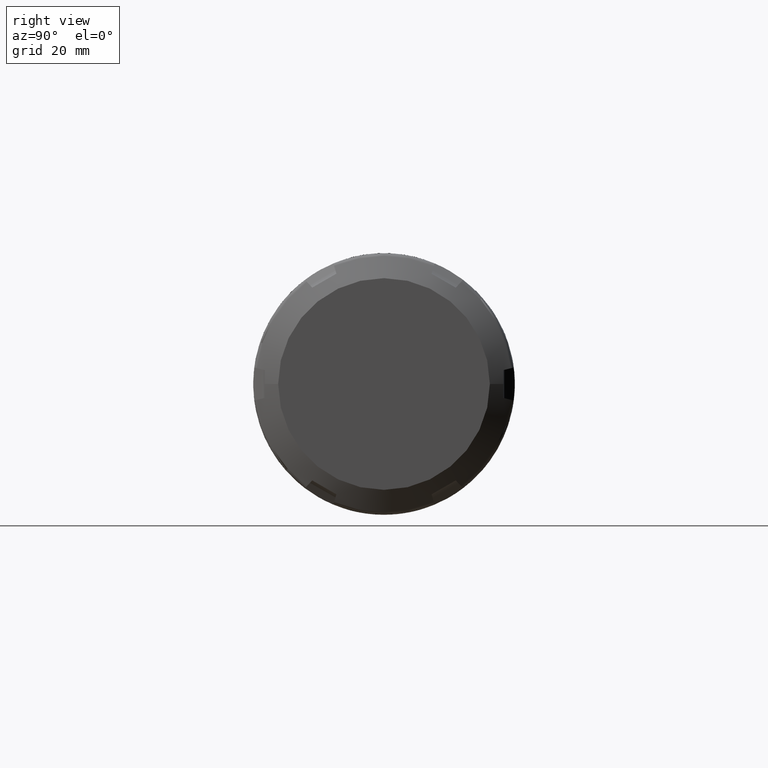
[diagram: clean part render]
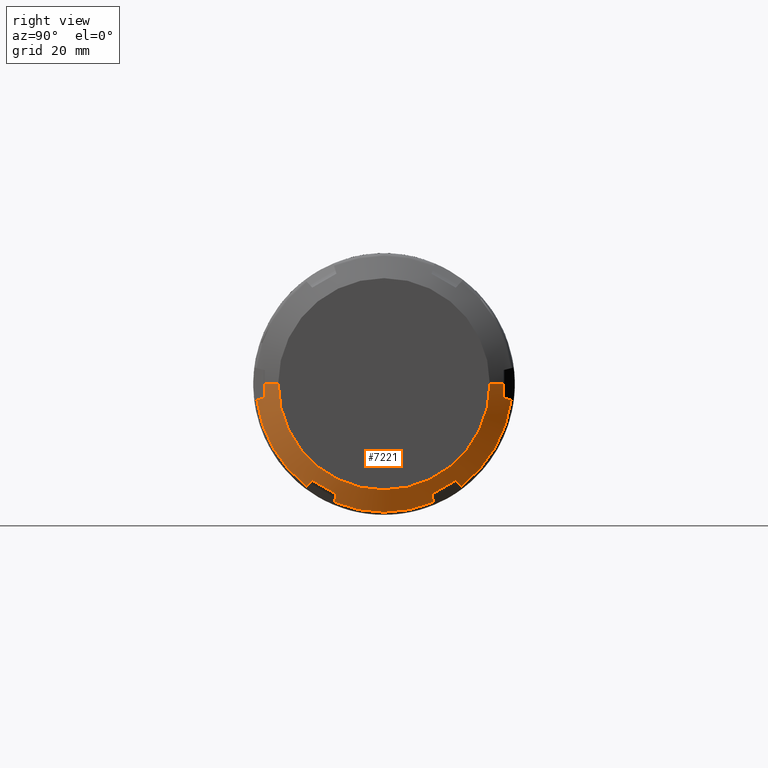
[diagram: same view with one face highlighted and labeled with its STEP entity id]
A machine part, right view. The second image highlights one B-rep face of the part: STEP entity #7221.
In plain terms, the highlighted conical surface has half-angle 60 deg.
Its self-contained STEP definition (entity closure, byte-faithful):
#6351=CARTESIAN_POINT('',(2.351130782476E1,1.727618510266E1,-2.322323035877E1));
#6352=CARTESIAN_POINT('',(2.332842823305E1,1.749804769833E1,-2.345297580209E1));
#6353=CARTESIAN_POINT('',(2.295978520802E1,1.794515018410E1,-2.391596397947E1));
#6354=CARTESIAN_POINT('',(2.258538211756E1,1.839901028735E1,-2.438594987460E1));
#6355=CARTESIAN_POINT('',(2.239674230313E1,1.862763043938E1,-2.462269297237E1));
#6357=CARTESIAN_POINT('',(2.351130782476E1,1.147381489730E1,-2.657323035877E1));
#6358=CARTESIAN_POINT('',(2.356105051412E1,1.211849164162E1,-2.620102606690E1));
#6359=CARTESIAN_POINT('',(2.362777625606E1,1.340784245763E1,-2.545661902620E1));
#6360=CARTESIAN_POINT('',(2.362777583851E1,1.534217003691E1,-2.433983447760E1));
#6361=CARTESIAN_POINT('',(2.356105010187E1,1.663151370114E1,-2.359543156598E1));
#6362=CARTESIAN_POINT('',(2.351130782476E1,1.727618510266E1,-2.322323035877E1));
#6364=CARTESIAN_POINT('',(2.239674230313E1,1.201006240397E1,-2.844334765900E1));
#6365=CARTESIAN_POINT('',(2.258533438069E1,1.191936989944E1,-2.812706530876E1));
#6366=CARTESIAN_POINT('',(2.295968976826E1,1.173930318813E1,-2.749909805885E1));
#6367=CARTESIAN_POINT('',(2.332838053240E1,1.156187195180E1,-2.688032180249E1));
#6368=CARTESIAN_POINT('',(2.351130782476E1,1.147381489730E1,-2.657323035877E1));
#6370=CARTESIAN_POINT('',(2.239674230313E1,0.E0,0.E0));
#6371=DIRECTION('',(-1.E0,0.E0,0.E0));
#6372=DIRECTION('',(0.E0,3.889898754327E-1,-9.212420294422E-1));
#6373=AXIS2_PLACEMENT_3D('',#6370,#6371,#6372);
#6375=CARTESIAN_POINT('',(2.351130782476E1,-1.147381489730E1,
-2.657323035877E1));
#6376=CARTESIAN_POINT('',(2.332842823305E1,-1.156184898978E1,
-2.688024172443E1));
#6377=CARTESIAN_POINT('',(2.295978520802E1,-1.173925727016E1,
-2.749893792389E1));
#6378=CARTESIAN_POINT('',(2.258538211756E1,-1.191934694315E1,
-2.812698525064E1));
#6379=CARTESIAN_POINT('',(2.239674230313E1,-1.201006240397E1,
-2.844334765900E1));
#6381=CARTESIAN_POINT('',(2.351130782476E1,-1.727618510266E1,
-2.322323035877E1));
#6382=CARTESIAN_POINT('',(2.356105051412E1,-1.663150835835E1,
-2.359543465064E1));
#6383=CARTESIAN_POINT('',(2.362777625606E1,-1.534215754233E1,
-2.433984169135E1));
#6384=CARTESIAN_POINT('',(2.362777583851E1,-1.340782996305E1,
-2.545662623995E1));
#6385=CARTESIAN_POINT('',(2.356105010187E1,-1.211848629883E1,
-2.620102915156E1));
#6386=CARTESIAN_POINT('',(2.351130782476E1,-1.147381489730E1,
-2.657323035877E1));
#6388=CARTESIAN_POINT('',(2.239674230313E1,-1.862763043938E1,
-2.462269297237E1));
#6389=CARTESIAN_POINT('',(2.258533438069E1,-1.839906814157E1,
-2.438600978440E1));
#6390=CARTESIAN_POINT('',(2.295968976826E1,-1.794526590606E1,
-2.391608381307E1));
#6391=CARTESIAN_POINT('',(2.332838053240E1,-1.749810556696E1,
-2.345303572681E1));
#6392=CARTESIAN_POINT('',(2.351130782476E1,-1.727618510266E1,
-2.322323035877E1));
#6394=CARTESIAN_POINT('',(2.239674230313E1,0.E0,0.E0));
#6395=DIRECTION('',(-1.E0,0.E0,0.E0));
#6396=DIRECTION('',(0.E0,-6.033240628145E-1,-7.974961286608E-1));
#6397=AXIS2_PLACEMENT_3D('',#6394,#6395,#6396);
#6399=CARTESIAN_POINT('',(2.351130782476E1,-2.874999999997E1,-3.35E0));
#6400=CARTESIAN_POINT('',(2.332842823305E1,-2.905989668812E1,
-3.427265922344E0));
#6401=CARTESIAN_POINT('',(2.295978520802E1,-2.968440745426E1,
-3.582973944421E0));
#6402=CARTESIAN_POINT('',(2.258538211756E1,-3.031835723049E1,
-3.741035376033E0));
#6403=CARTESIAN_POINT('',(2.239674230313E1,-3.063769284335E1,
-3.820654686622E0));
#6405=CARTESIAN_POINT('',(2.362361162515E1,-2.874999999997E1,0.E0));
#6406=CARTESIAN_POINT('',(2.362361162515E1,-2.874999999997E1,
-3.723033754199E-1));
#6407=CARTESIAN_POINT('',(2.361525781864E1,-2.874999999997E1,
-1.116855572672E0));
#6408=CARTESIAN_POINT('',(2.357773435590E1,-2.874999999997E1,
-2.233506677949E0));
#6409=CARTESIAN_POINT('',(2.353617556265E1,-2.874999999997E1,
-2.977849684408E0));
#6410=CARTESIAN_POINT('',(2.351130782476E1,-2.874999999997E1,-3.35E0));
#6412=DIRECTION('',(-5.E-1,-8.660254037844E-1,0.E0));
#6413=VECTOR('',#6412,3.752776749692E0);
#6414=CARTESIAN_POINT('',(2.55E1,-2.55E1,0.E0));
#6415=LINE('',#6414,#6413);
#6416=CARTESIAN_POINT('',(2.55E1,0.E0,0.E0));
#6417=DIRECTION('',(-1.E0,0.E0,0.E0));
#6418=DIRECTION('',(0.E0,1.E0,0.E0));
#6419=AXIS2_PLACEMENT_3D('',#6416,#6417,#6418);
#6421=DIRECTION('',(-5.E-1,8.660254037844E-1,0.E0));
#6422=VECTOR('',#6421,3.752776749692E0);
#6423=CARTESIAN_POINT('',(2.55E1,2.55E1,0.E0));
#6424=LINE('',#6423,#6422);
#6425=CARTESIAN_POINT('',(2.351130782476E1,2.874999999997E1,-3.35E0));
#6426=CARTESIAN_POINT('',(2.353617695757E1,2.874999999997E1,-2.977828809184E0));
#6427=CARTESIAN_POINT('',(2.357773662637E1,2.874999999997E1,-2.233458033279E0));
#6428=CARTESIAN_POINT('',(2.361525848375E1,2.874999999997E1,-1.116817767542E0));
#6429=CARTESIAN_POINT('',(2.362361162515E1,2.874999999997E1,
-3.722872262064E-1));
#6430=CARTESIAN_POINT('',(2.362361162515E1,2.874999999997E1,0.E0));
#6432=CARTESIAN_POINT('',(2.239674230313E1,3.063769284335E1,-3.820654686622E0));
#6433=CARTESIAN_POINT('',(2.258533438069E1,3.031843804101E1,-3.741055524357E0));
#6434=CARTESIAN_POINT('',(2.295968976826E1,2.968456909419E1,-3.583014245782E0));
#6435=CARTESIAN_POINT('',(2.332838053240E1,2.905997751876E1,-3.427286075687E0));
#6436=CARTESIAN_POINT('',(2.351130782476E1,2.874999999997E1,-3.35E0));
#6438=CARTESIAN_POINT('',(2.239674230313E1,0.E0,0.E0));
#6439=DIRECTION('',(-1.E0,0.E0,0.E0));
#6440=DIRECTION('',(0.E0,9.923139382473E-1,-1.237459007814E-1));
#6441=AXIS2_PLACEMENT_3D('',#6438,#6439,#6440);
#6702=CARTESIAN_POINT('',(2.362361162515E1,-2.874999999997E1,0.E0));
#6769=CARTESIAN_POINT('',(2.362361162515E1,2.874999999997E1,0.E0));
#7059=CARTESIAN_POINT('',(2.55E1,2.55E1,0.E0));
#7060=CARTESIAN_POINT('',(2.55E1,-2.55E1,0.E0));
#7061=VERTEX_POINT('',#7059);
#7062=VERTEX_POINT('',#7060);
#7073=VERTEX_POINT('',#6769);
#7074=VERTEX_POINT('',#6425);
#7075=VERTEX_POINT('',#6432);
#7128=VERTEX_POINT('',#6702);
#7130=VERTEX_POINT('',#6399);
#7131=VERTEX_POINT('',#6403);
#7141=VERTEX_POINT('',#6375);
#7142=VERTEX_POINT('',#6379);
#7143=VERTEX_POINT('',#6381);
#7144=VERTEX_POINT('',#6388);
#7156=VERTEX_POINT('',#6351);
#7157=VERTEX_POINT('',#6355);
#7158=VERTEX_POINT('',#6357);
#7159=VERTEX_POINT('',#6364);
#7183=CARTESIAN_POINT('',(2.394837115156E1,0.E0,0.E0));
#7184=DIRECTION('',(-1.E0,0.E0,0.E0));
#7185=DIRECTION('',(0.E0,1.E0,0.E0));
#7186=AXIS2_PLACEMENT_3D('',#7183,#7184,#7185);
#7187=CONICAL_SURFACE('',#7186,2.818749999998E1,6.E1);
#7189=ORIENTED_EDGE('',*,*,#7188,.F.);
#7191=ORIENTED_EDGE('',*,*,#7190,.F.);
#7193=ORIENTED_EDGE('',*,*,#7192,.F.);
#7195=ORIENTED_EDGE('',*,*,#7194,.T.);
#7197=ORIENTED_EDGE('',*,*,#7196,.F.);
#7199=ORIENTED_EDGE('',*,*,#7198,.F.);
#7201=ORIENTED_EDGE('',*,*,#7200,.F.);
#7203=ORIENTED_EDGE('',*,*,#7202,.T.);
#7205=ORIENTED_EDGE('',*,*,#7204,.F.);
#7207=ORIENTED_EDGE('',*,*,#7206,.F.);
#7209=ORIENTED_EDGE('',*,*,#7208,.F.);
#7210=ORIENTED_EDGE('',*,*,#7176,.F.);
#7212=ORIENTED_EDGE('',*,*,#7211,.T.);
#7214=ORIENTED_EDGE('',*,*,#7213,.F.);
#7216=ORIENTED_EDGE('',*,*,#7215,.F.);
#7218=ORIENTED_EDGE('',*,*,#7217,.T.);
#7219=EDGE_LOOP('',(#7189,#7191,#7193,#7195,#7197,#7199,#7201,#7203,#7205,#7207,
#7209,#7210,#7212,#7214,#7216,#7218));
#7220=FACE_OUTER_BOUND('',#7219,.F.);
#7221=ADVANCED_FACE('',(#7220),#7187,.T.);
#6356=B_SPLINE_CURVE_WITH_KNOTS('',3,(#6351,#6352,#6353,#6354,#6355),
.UNSPECIFIED.,.F.,.F.,(4,1,4),(0.E0,5.E-1,1.E0),.UNSPECIFIED.);
#6363=B_SPLINE_CURVE_WITH_KNOTS('',3,(#6357,#6358,#6359,#6360,#6361,#6362),
.UNSPECIFIED.,.F.,.F.,(4,1,1,4),(0.E0,3.333333333333E-1,6.666666666667E-1,1.E0),
.UNSPECIFIED.);
#6369=B_SPLINE_CURVE_WITH_KNOTS('',3,(#6364,#6365,#6366,#6367,#6368),
.UNSPECIFIED.,.F.,.F.,(4,1,4),(0.E0,5.E-1,1.E0),.UNSPECIFIED.);
#6374=CIRCLE('',#6373,3.087499999997E1);
#6380=B_SPLINE_CURVE_WITH_KNOTS('',3,(#6375,#6376,#6377,#6378,#6379),
.UNSPECIFIED.,.F.,.F.,(4,1,4),(0.E0,5.E-1,1.E0),.UNSPECIFIED.);
#6387=B_SPLINE_CURVE_WITH_KNOTS('',3,(#6381,#6382,#6383,#6384,#6385,#6386),
.UNSPECIFIED.,.F.,.F.,(4,1,1,4),(0.E0,3.333333333333E-1,6.666666666667E-1,1.E0),
.UNSPECIFIED.);
#6393=B_SPLINE_CURVE_WITH_KNOTS('',3,(#6388,#6389,#6390,#6391,#6392),
.UNSPECIFIED.,.F.,.F.,(4,1,4),(0.E0,5.E-1,1.E0),.UNSPECIFIED.);
#6398=CIRCLE('',#6397,3.087499999997E1);
#6404=B_SPLINE_CURVE_WITH_KNOTS('',3,(#6399,#6400,#6401,#6402,#6403),
.UNSPECIFIED.,.F.,.F.,(4,1,4),(0.E0,5.E-1,1.E0),.UNSPECIFIED.);
#6411=B_SPLINE_CURVE_WITH_KNOTS('',3,(#6405,#6406,#6407,#6408,#6409,#6410),
.UNSPECIFIED.,.F.,.F.,(4,1,1,4),(0.E0,3.333333333333E-1,6.666666666667E-1,1.E0),
.UNSPECIFIED.);
#6420=CIRCLE('',#6419,2.55E1);
#6431=B_SPLINE_CURVE_WITH_KNOTS('',3,(#6425,#6426,#6427,#6428,#6429,#6430),
.UNSPECIFIED.,.F.,.F.,(4,1,1,4),(0.E0,3.333333333333E-1,6.666666666667E-1,1.E0),
.UNSPECIFIED.);
#6437=B_SPLINE_CURVE_WITH_KNOTS('',3,(#6432,#6433,#6434,#6435,#6436),
.UNSPECIFIED.,.F.,.F.,(4,1,4),(0.E0,5.E-1,1.E0),.UNSPECIFIED.);
#6442=CIRCLE('',#6441,3.087499999997E1);
#7176=EDGE_CURVE('',#7061,#7062,#6420,.T.);
#7188=EDGE_CURVE('',#7156,#7157,#6356,.T.);
#7190=EDGE_CURVE('',#7158,#7156,#6363,.T.);
#7192=EDGE_CURVE('',#7159,#7158,#6369,.T.);
#7194=EDGE_CURVE('',#7159,#7142,#6374,.T.);
#7196=EDGE_CURVE('',#7141,#7142,#6380,.T.);
#7198=EDGE_CURVE('',#7143,#7141,#6387,.T.);
#7200=EDGE_CURVE('',#7144,#7143,#6393,.T.);
#7202=EDGE_CURVE('',#7144,#7131,#6398,.T.);
#7204=EDGE_CURVE('',#7130,#7131,#6404,.T.);
#7206=EDGE_CURVE('',#7128,#7130,#6411,.T.);
#7208=EDGE_CURVE('',#7062,#7128,#6415,.T.);
#7211=EDGE_CURVE('',#7061,#7073,#6424,.T.);
#7213=EDGE_CURVE('',#7074,#7073,#6431,.T.);
#7215=EDGE_CURVE('',#7075,#7074,#6437,.T.);
#7217=EDGE_CURVE('',#7075,#7157,#6442,.T.);